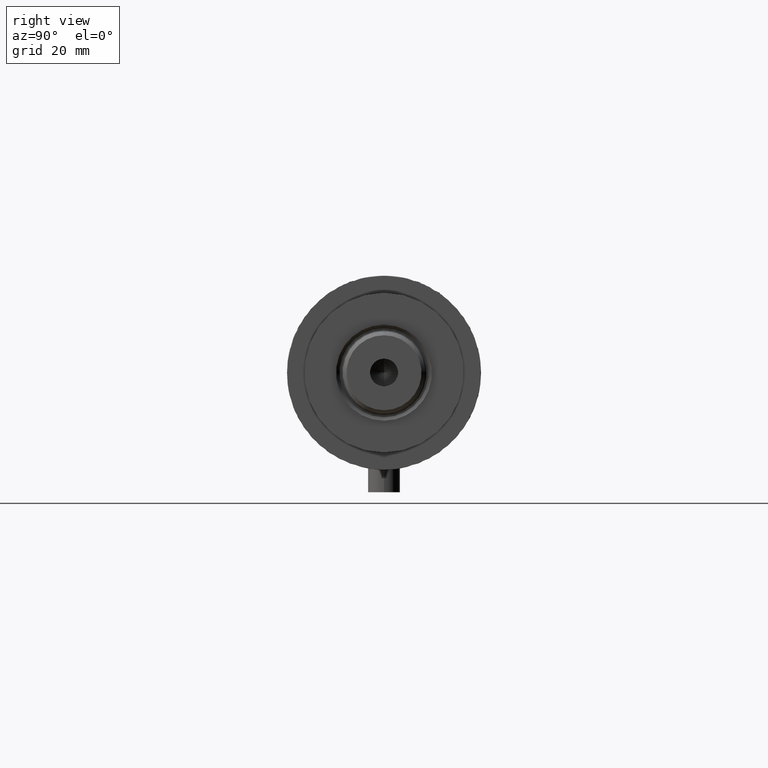
[diagram: clean part render]
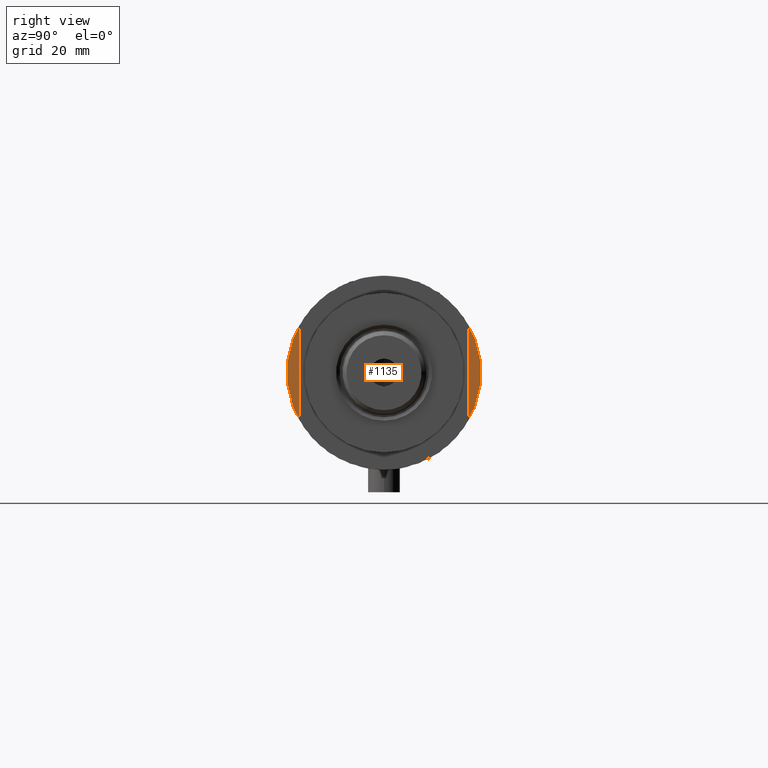
[diagram: same view with one face highlighted and labeled with its STEP entity id]
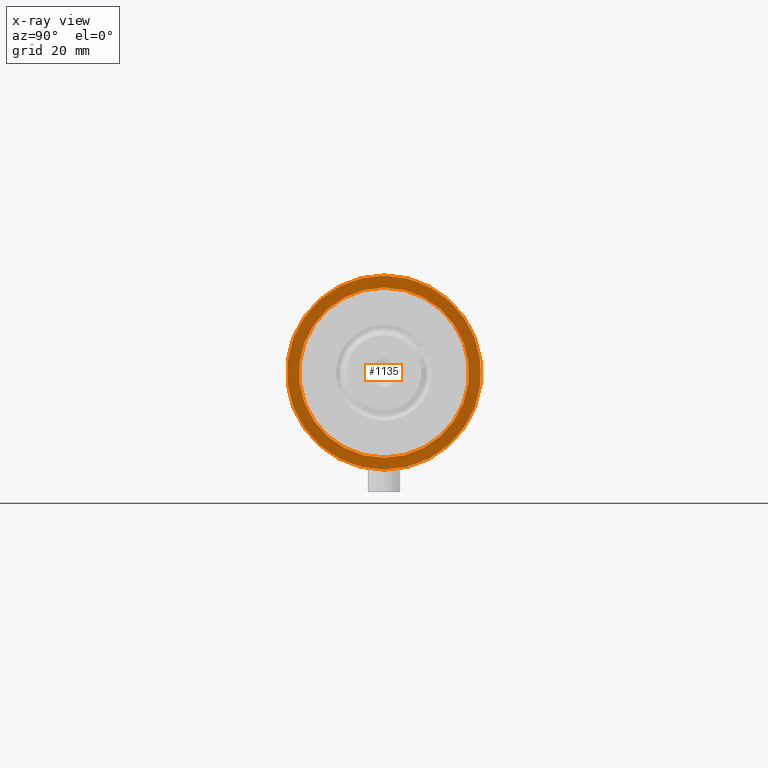
[diagram: x-ray of the same camera — body ghosted, the highlighted face saturated]
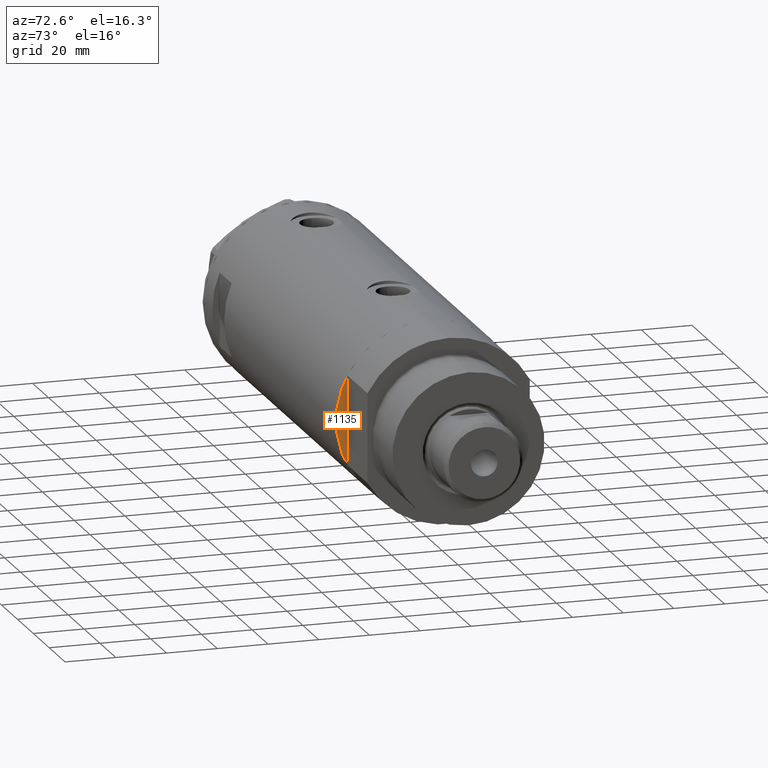
[diagram: same view with one face highlighted and labeled with its STEP entity id]
A machine part, right view. The second image highlights one B-rep face of the part: STEP entity #1135.
The next image is the same camera in x-ray: the body ghosted, the highlighted face saturated — about 0% of this face is hidden behind the body in this view.
A second angle (auxiliary view) of the same face is appended — the face is thin or edge-on in the first view.
In plain terms, the highlighted planar face has unit normal (-1, -0, 0).
Its self-contained STEP definition (entity closure, byte-faithful):
#338 = CARTESIAN_POINT ( 'NONE',  ( 0.000000000000000000, 0.000000000000000000, -82.90000000000000568 ) ) ;
#539 = CARTESIAN_POINT ( 'NONE',  ( 0.000000000000000000, 0.000000000000000000, -82.90000000000000568 ) ) ;
#704 = DIRECTION ( 'NONE',  ( 1.000000000000000000, 0.000000000000000000, 0.000000000000000000 ) ) ;
#1074 = EDGE_CURVE ( 'NONE', #1266, #3004, #2605, .T. ) ;
#1135 = ADVANCED_FACE ( 'NONE', ( #1253, #3305 ), #4375, .F. ) ;
#1189 = ORIENTED_EDGE ( 'NONE', *, *, #4476, .F. ) ;
#1253 = FACE_BOUND ( 'NONE', #2440, .T. ) ;
#1266 = VERTEX_POINT ( 'NONE', #1943 ) ;
#1352 = DIRECTION ( 'NONE',  ( 0.000000000000000000, 0.000000000000000000, -1.000000000000000000 ) ) ;
#1489 = DIRECTION ( 'NONE',  ( 1.000000000000000000, 0.000000000000000000, -0.000000000000000000 ) ) ;
#1539 = CIRCLE ( 'NONE', #4066, 32.00000000000000000 ) ;
#1764 = CARTESIAN_POINT ( 'NONE',  ( 0.000000000000000000, 0.000000000000000000, -82.90000000000000568 ) ) ;
#1818 = AXIS2_PLACEMENT_3D ( 'NONE', #1764, #3143, #3851 ) ;
#1925 = EDGE_CURVE ( 'NONE', #2201, #3083, #3333, .T. ) ;
#1943 = CARTESIAN_POINT ( 'NONE',  ( 32.00000000000000000, 3.918869757271530263E-15, -82.90000000000000568 ) ) ;
#2048 = CARTESIAN_POINT ( 'NONE',  ( 36.50000000000000000, 0.000000000000000000, -82.90000000000000568 ) ) ;
#2068 = ORIENTED_EDGE ( 'NONE', *, *, #1925, .F. ) ;
#2201 = VERTEX_POINT ( 'NONE', #2048 ) ;
#2243 = AXIS2_PLACEMENT_3D ( 'NONE', #539, #2476, #1489 ) ;
#2286 = ORIENTED_EDGE ( 'NONE', *, *, #4187, .F. ) ;
#2377 = CARTESIAN_POINT ( 'NONE',  ( -36.50000000000000000, 4.469960816887838430E-15, -82.90000000000000568 ) ) ;
#2440 = EDGE_LOOP ( 'NONE', ( #2286, #3847 ) ) ;
#2476 = DIRECTION ( 'NONE',  ( 0.000000000000000000, 0.000000000000000000, 1.000000000000000000 ) ) ;
#2605 = CIRCLE ( 'NONE', #4410, 32.00000000000000000 ) ;
#2719 = DIRECTION ( 'NONE',  ( -1.000000000000000000, 0.000000000000000000, 0.000000000000000000 ) ) ;
#2792 = CARTESIAN_POINT ( 'NONE',  ( 0.000000000000000000, 0.000000000000000000, -82.90000000000000568 ) ) ;
#2906 = CIRCLE ( 'NONE', #3126, 36.50000000000000000 ) ;
#2930 = DIRECTION ( 'NONE',  ( 0.000000000000000000, 0.000000000000000000, -1.000000000000000000 ) ) ;
#2952 = CARTESIAN_POINT ( 'NONE',  ( 0.000000000000000000, 0.000000000000000000, -82.90000000000000568 ) ) ;
#3004 = VERTEX_POINT ( 'NONE', #4131 ) ;
#3083 = VERTEX_POINT ( 'NONE', #2377 ) ;
#3126 = AXIS2_PLACEMENT_3D ( 'NONE', #338, #3821, #704 ) ;
#3143 = DIRECTION ( 'NONE',  ( 0.000000000000000000, 0.000000000000000000, 1.000000000000000000 ) ) ;
#3215 = DIRECTION ( 'NONE',  ( -1.000000000000000000, 0.000000000000000000, 0.000000000000000000 ) ) ;
#3305 = FACE_OUTER_BOUND ( 'NONE', #4242, .T. ) ;
#3333 = CIRCLE ( 'NONE', #1818, 36.50000000000000000 ) ;
#3821 = DIRECTION ( 'NONE',  ( 0.000000000000000000, 0.000000000000000000, 1.000000000000000000 ) ) ;
#3847 = ORIENTED_EDGE ( 'NONE', *, *, #1074, .F. ) ;
#3851 = DIRECTION ( 'NONE',  ( 1.000000000000000000, 0.000000000000000000, 0.000000000000000000 ) ) ;
#4066 = AXIS2_PLACEMENT_3D ( 'NONE', #2952, #2930, #3215 ) ;
#4131 = CARTESIAN_POINT ( 'NONE',  ( -32.00000000000000000, 0.000000000000000000, -82.90000000000000568 ) ) ;
#4187 = EDGE_CURVE ( 'NONE', #3004, #1266, #1539, .T. ) ;
#4242 = EDGE_LOOP ( 'NONE', ( #2068, #1189 ) ) ;
#4375 = PLANE ( 'NONE',  #2243 ) ;
#4410 = AXIS2_PLACEMENT_3D ( 'NONE', #2792, #1352, #2719 ) ;
#4476 = EDGE_CURVE ( 'NONE', #3083, #2201, #2906, .T. ) ;